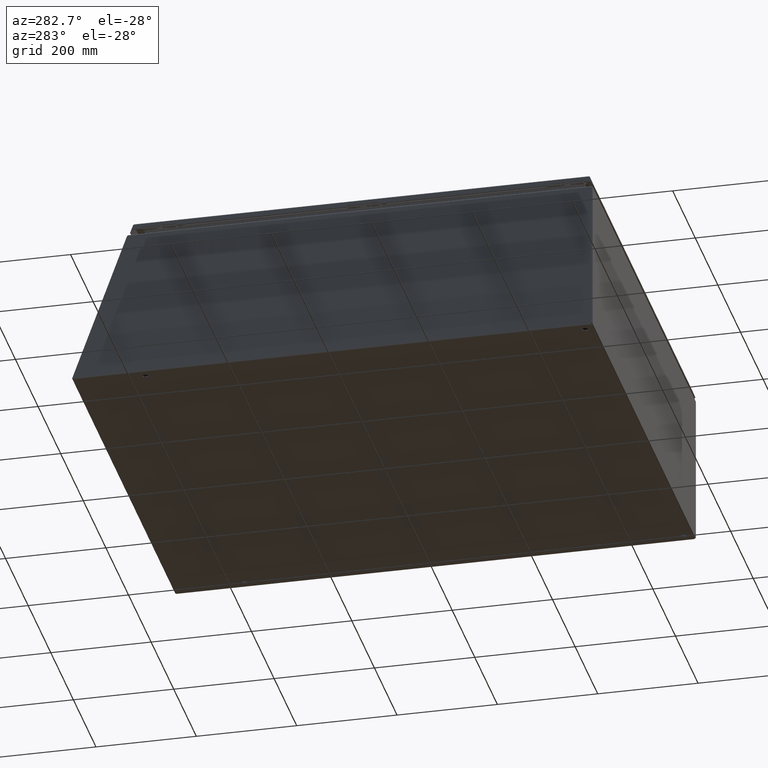
[diagram: clean part render]
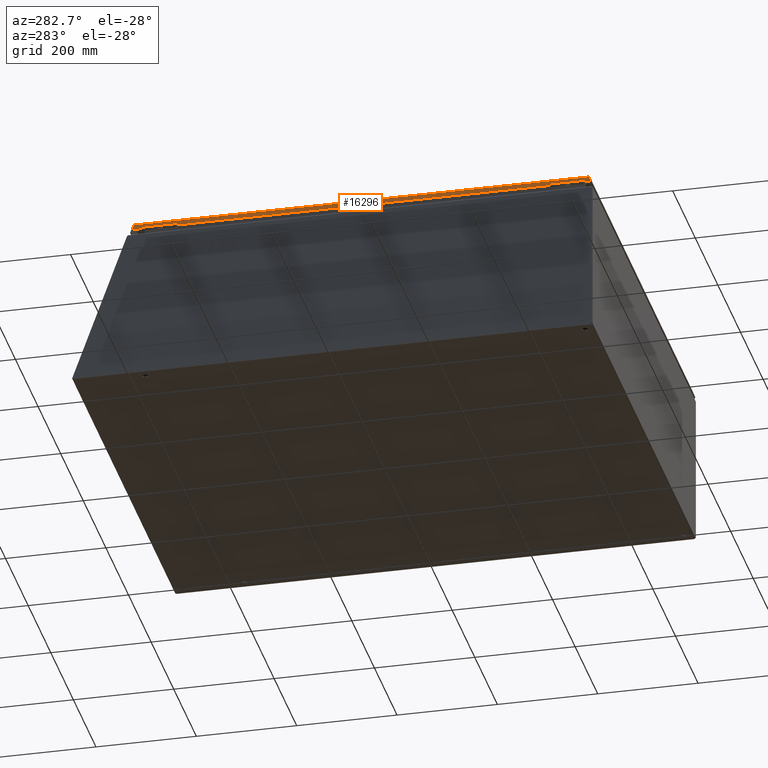
[diagram: same view with one face highlighted and labeled with its STEP entity id]
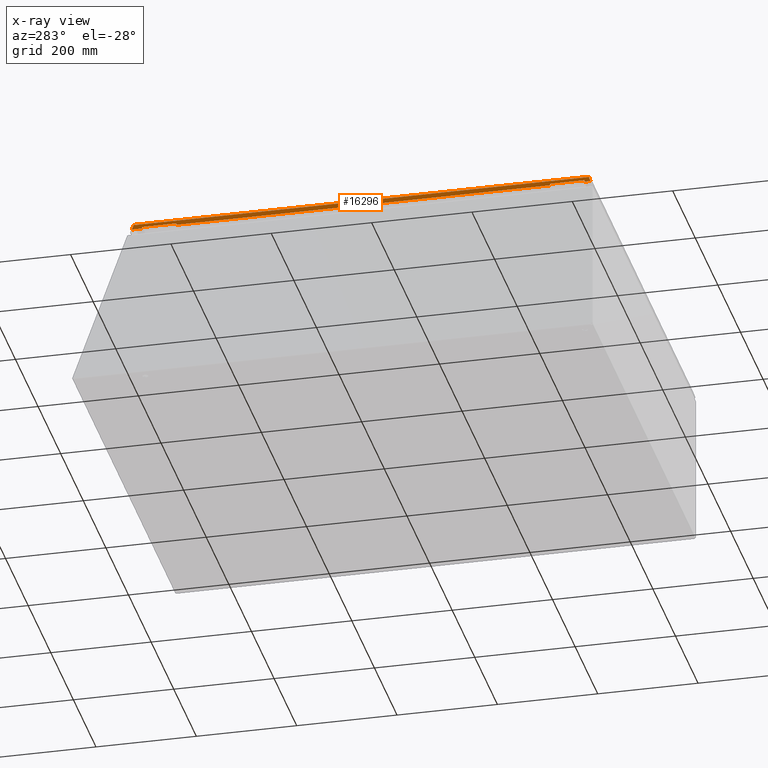
[diagram: x-ray of the same camera — body ghosted, the highlighted face saturated]
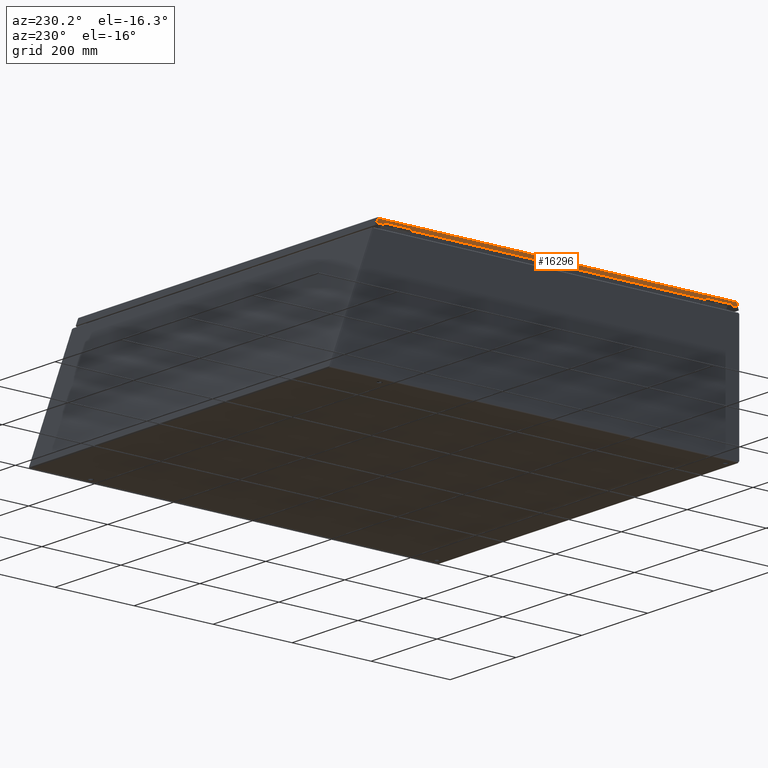
[diagram: same view with one face highlighted and labeled with its STEP entity id]
A machine part, auxiliary view. The second image highlights one B-rep face of the part: STEP entity #16296.
The next image is the same camera in x-ray: the body ghosted, the highlighted face saturated — about 0% of this face is hidden behind the body in this view.
A second angle (auxiliary view) of the same face is appended — the face is thin or edge-on in the first view.
In plain terms, the highlighted planar face has unit normal (-1, 0, -0).
Its self-contained STEP definition (entity closure, byte-faithful):
#614=PLANE('',#17597);
#1665=LINE('',#31542,#2892);
#1669=LINE('',#31551,#2896);
#1672=LINE('',#31555,#2899);
#1675=LINE('',#31563,#2902);
#1679=LINE('',#31572,#2906);
#1682=LINE('',#31576,#2909);
#1685=LINE('',#31582,#2912);
#1686=LINE('',#31585,#2913);
#1690=LINE('',#31591,#2917);
#1699=LINE('',#31610,#2926);
#1702=LINE('',#31615,#2929);
#1703=LINE('',#31617,#2930);
#1705=LINE('',#31621,#2932);
#1706=LINE('',#31624,#2933);
#1777=LINE('',#32060,#3004);
#1782=LINE('',#32134,#3009);
#2892=VECTOR('',#20513,0.124999999999998);
#2896=VECTOR('',#20519,0.125);
#2899=VECTOR('',#20524,2.6875);
#2902=VECTOR('',#20529,0.124999999999998);
#2906=VECTOR('',#20535,0.125);
#2909=VECTOR('',#20540,2.6875);
#2912=VECTOR('',#20545,13.3125);
#2913=VECTOR('',#20548,0.798329069965212);
#2917=VECTOR('',#20554,13.3125);
#2926=VECTOR('',#20567,0.124999999999998);
#2929=VECTOR('',#20572,0.125);
#2930=VECTOR('',#20575,2.6875);
#2932=VECTOR('',#20579,0.498329069965251);
#2933=VECTOR('',#20582,0.398800620235348);
#3004=VECTOR('',#20743,35.711362449348);
#3009=VECTOR('',#20754,0.398800620235329);
#4451=FACE_OUTER_BOUND('',#5612,.T.);
#5612=EDGE_LOOP('',(#12774,#12775,#12776,#12777,#12778,#12779,#12780,#12781,
#12782,#12783,#12784,#12785,#12786,#12787,#12788,#12789));
#7451=VERTEX_POINT('',#31539);
#7452=VERTEX_POINT('',#31541);
#7455=VERTEX_POINT('',#31548);
#7456=VERTEX_POINT('',#31550);
#7459=VERTEX_POINT('',#31560);
#7460=VERTEX_POINT('',#31562);
#7463=VERTEX_POINT('',#31569);
#7464=VERTEX_POINT('',#31571);
#7466=VERTEX_POINT('',#31580);
#7467=VERTEX_POINT('',#31584);
#7475=VERTEX_POINT('',#31607);
#7476=VERTEX_POINT('',#31609);
#7477=VERTEX_POINT('',#31613);
#7478=VERTEX_POINT('',#31619);
#7479=VERTEX_POINT('',#31623);
#7549=VERTEX_POINT('',#32059);
#9242=EDGE_CURVE('',#7452,#7451,#1665,.T.);
#9246=EDGE_CURVE('',#7456,#7455,#1669,.T.);
#9249=EDGE_CURVE('',#7455,#7452,#1672,.T.);
#9252=EDGE_CURVE('',#7460,#7459,#1675,.T.);
#9256=EDGE_CURVE('',#7464,#7463,#1679,.T.);
#9259=EDGE_CURVE('',#7463,#7460,#1682,.T.);
#9262=EDGE_CURVE('',#7459,#7466,#1685,.T.);
#9263=EDGE_CURVE('',#7467,#7456,#1686,.T.);
#9267=EDGE_CURVE('',#7451,#7464,#1690,.T.);
#9276=EDGE_CURVE('',#7476,#7475,#1699,.T.);
#9279=EDGE_CURVE('',#7466,#7477,#1702,.T.);
#9280=EDGE_CURVE('',#7477,#7476,#1703,.T.);
#9282=EDGE_CURVE('',#7475,#7478,#1705,.T.);
#9283=EDGE_CURVE('',#7467,#7479,#1706,.T.);
#9389=EDGE_CURVE('',#7549,#7479,#1777,.T.);
#9401=EDGE_CURVE('',#7549,#7478,#1782,.T.);
#12774=ORIENTED_EDGE('',*,*,#9242,.T.);
#12775=ORIENTED_EDGE('',*,*,#9267,.T.);
#12776=ORIENTED_EDGE('',*,*,#9256,.T.);
#12777=ORIENTED_EDGE('',*,*,#9259,.T.);
#12778=ORIENTED_EDGE('',*,*,#9252,.T.);
#12779=ORIENTED_EDGE('',*,*,#9262,.T.);
#12780=ORIENTED_EDGE('',*,*,#9279,.T.);
#12781=ORIENTED_EDGE('',*,*,#9280,.T.);
#12782=ORIENTED_EDGE('',*,*,#9276,.T.);
#12783=ORIENTED_EDGE('',*,*,#9282,.T.);
#12784=ORIENTED_EDGE('',*,*,#9401,.F.);
#12785=ORIENTED_EDGE('',*,*,#9389,.T.);
#12786=ORIENTED_EDGE('',*,*,#9283,.F.);
#12787=ORIENTED_EDGE('',*,*,#9263,.T.);
#12788=ORIENTED_EDGE('',*,*,#9246,.T.);
#12789=ORIENTED_EDGE('',*,*,#9249,.T.);
#16296=ADVANCED_FACE('',(#4451),#614,.T.);
#17597=AXIS2_PLACEMENT_3D('',#32155,#20755,#20756);
#20513=DIRECTION('',(-9.47269537235611E-016,-5.20186435991237E-018,-1.));
#20519=DIRECTION('',(9.47269537235611E-016,5.20186435991237E-018,1.));
#20524=DIRECTION('',(1.80728272334234E-016,-1.,-5.47774994636687E-016));
#20529=DIRECTION('',(-9.47269537235611E-016,-5.20186435991237E-018,-1.));
#20535=DIRECTION('',(9.47269537235611E-016,5.20186435991237E-018,1.));
#20540=DIRECTION('',(1.80728272334234E-016,-1.,-5.47774994636687E-016));
#20545=DIRECTION('',(1.80728272334235E-016,-1.,2.45342767478535E-016));
#20548=DIRECTION('',(1.80728272334235E-016,-1.,2.45342767478535E-016));
#20554=DIRECTION('',(1.80728272334235E-016,-1.,2.45342767478535E-016));
#20567=DIRECTION('',(-9.47269537235611E-016,-5.20186435991237E-018,-1.));
#20572=DIRECTION('',(9.47269537235611E-016,5.20186435991237E-018,1.));
#20575=DIRECTION('',(1.80728272334234E-016,-1.,-5.47774994636687E-016));
#20579=DIRECTION('',(1.80728272334235E-016,-1.,2.45342767478535E-016));
#20582=DIRECTION('',(9.51954903642341E-016,-0.342020143325668,0.939692620785909));
#20743=DIRECTION('',(-1.80728272334234E-016,1.,-1.94825343616775E-036));
#20754=DIRECTION('',(-8.28329484428829E-016,-0.34202014332567,-0.939692620785908));
#20755=DIRECTION('center_axis',(-1.,-1.80728272334234E-016,9.47269537235611E-016));
#20756=DIRECTION('ref_axis',(9.86988268891764E-016,0.,1.));
#31539=CARTESIAN_POINT('',(-0.438634022905814,-2.89047523337155,-0.406000000000001));
#31541=CARTESIAN_POINT('',(-0.438634022905814,-2.89047523337155,-0.281000000000003));
#31542=CARTESIAN_POINT('',(-0.438634022905814,-2.89047523337155,-0.356641528091637));
#31548=CARTESIAN_POINT('',(-0.438634022905814,-0.202975233371547,-0.281000000000001));
#31550=CARTESIAN_POINT('',(-0.438634022905814,-0.202975233371547,-0.406000000000002));
#31551=CARTESIAN_POINT('',(-0.438634022905814,-0.202975233371547,-0.294141528091637));
#31555=CARTESIAN_POINT('',(-0.438634022905813,-9.47172523337157,-0.281000000000007));
#31560=CARTESIAN_POINT('',(-0.438634022905811,-18.8904752333715,-0.405999999999996));
#31562=CARTESIAN_POINT('',(-0.438634022905811,-18.8904752333715,-0.280999999999998));
#31563=CARTESIAN_POINT('',(-0.438634022905811,-18.8904752333715,-0.356641528091635));
#31569=CARTESIAN_POINT('',(-0.438634022905811,-16.2029752333715,-0.280999999999996));
#31571=CARTESIAN_POINT('',(-0.438634022905812,-16.2029752333715,-0.405999999999997));
#31572=CARTESIAN_POINT('',(-0.438634022905811,-16.2029752333715,-0.294141528091635));
#31576=CARTESIAN_POINT('',(-0.438634022905811,-17.4717252333716,-0.280999999999998));
#31580=CARTESIAN_POINT('',(-0.438634022905809,-32.2029752333715,-0.405999999999992));
#31582=CARTESIAN_POINT('',(-0.43863402290581,-26.3927647683542,-0.405999999999995));
#31584=CARTESIAN_POINT('',(-0.438634022905815,0.595353836593665,-0.406000000000002));
#31585=CARTESIAN_POINT('',(-0.43863402290581,-26.3927647683542,-0.405999999999995));
#31591=CARTESIAN_POINT('',(-0.43863402290581,-26.3927647683542,-0.405999999999995));
#31607=CARTESIAN_POINT('',(-0.438634022905808,-34.8904752333715,-0.405999999999991));
#31609=CARTESIAN_POINT('',(-0.438634022905808,-34.8904752333715,-0.280999999999993));
#31610=CARTESIAN_POINT('',(-0.438634022905808,-34.8904752333715,-0.356641528091632));
#31613=CARTESIAN_POINT('',(-0.438634022905809,-32.2029752333715,-0.280999999999992));
#31615=CARTESIAN_POINT('',(-0.438634022905809,-32.2029752333715,-0.294141528091632));
#31617=CARTESIAN_POINT('',(-0.43863402290581,-25.4717252333716,-0.280999999999988));
#31619=CARTESIAN_POINT('',(-0.438634022905808,-35.3888043033368,-0.405999999999993));
#31621=CARTESIAN_POINT('',(-0.43863402290581,-26.3927647683542,-0.405999999999995));
#31623=CARTESIAN_POINT('',(-0.438634022905814,0.458955991302411,-0.0312499999999996));
#31624=CARTESIAN_POINT('',(-0.438634022905812,-0.484197711740662,2.56004350218585));
#32059=CARTESIAN_POINT('',(-0.438634022905808,-35.2524064580456,-0.0312499999999994));
#32060=CARTESIAN_POINT('',(-0.438634022905811,-17.3967252333716,-0.0312499999999994));
#32134=CARTESIAN_POINT('',(-0.438634022905806,-34.3092527550025,2.56004350218585));
#32155=CARTESIAN_POINT('Origin',(-0.438634022905811,-17.3967252333716,-0.307283056183273));